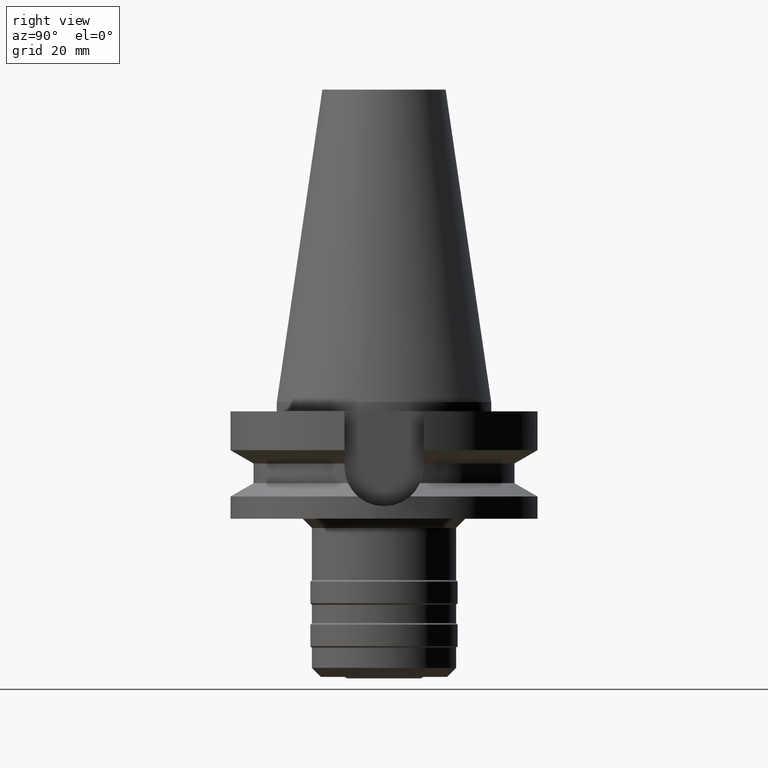
[diagram: clean part render]
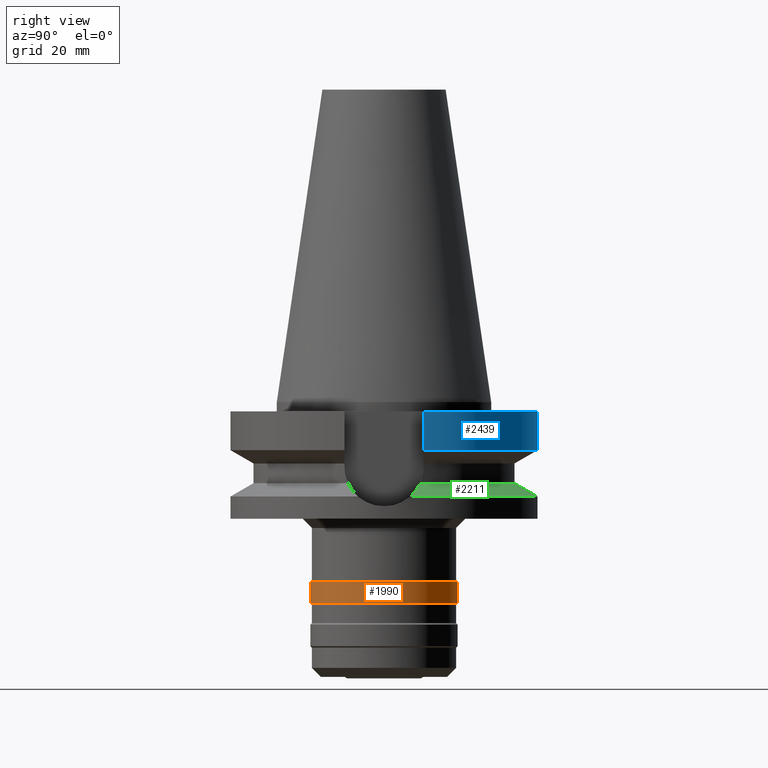
[diagram: same view with three faces highlighted in distinct colors, each labeled with its STEP entity id]
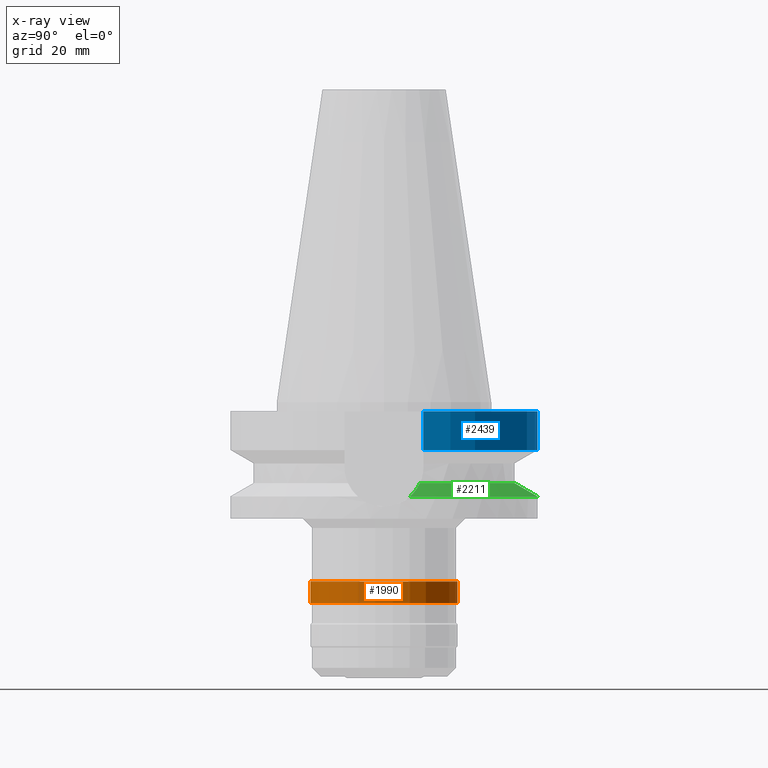
[diagram: x-ray of the same camera — body ghosted, the three highlighted faces saturated]
A machine part, right view with three faces highlighted in distinct colors.
The next image is the same camera in x-ray (body ghosted, the three faces saturated) — at least one of them is partly hidden behind the body in this view.
Their STEP definitions:

[orange] entity #1990 — the highlighted cylindrical surface (partial cylindrical patch) has radius 24 mm, axis along (0, 0, -1).
#503=CARTESIAN_POINT('',(0.E0,0.E0,-6.55E1));
#504=DIRECTION('',(0.E0,0.E0,1.E0));
#505=DIRECTION('',(0.E0,-1.E0,0.E0));
#506=AXIS2_PLACEMENT_3D('',#503,#504,#505);
#534=DIRECTION('',(0.E0,0.E0,-1.E0));
#535=VECTOR('',#534,7.E0);
#536=CARTESIAN_POINT('',(0.E0,-2.4E1,-5.85E1));
#537=LINE('',#536,#535);
#541=DIRECTION('',(0.E0,0.E0,-1.E0));
#542=VECTOR('',#541,7.E0);
#543=CARTESIAN_POINT('',(0.E0,2.4E1,-5.85E1));
#544=LINE('',#543,#542);
#555=CARTESIAN_POINT('',(0.E0,0.E0,-5.85E1));
#556=DIRECTION('',(0.E0,0.E0,-1.E0));
#557=DIRECTION('',(0.E0,1.E0,0.E0));
#558=AXIS2_PLACEMENT_3D('',#555,#556,#557);
#1360=CARTESIAN_POINT('',(0.E0,2.4E1,-6.55E1));
#1361=VERTEX_POINT('',#1360);
#1362=CARTESIAN_POINT('',(0.E0,-2.4E1,-6.55E1));
#1363=VERTEX_POINT('',#1362);
#1364=CARTESIAN_POINT('',(0.E0,2.4E1,-5.85E1));
#1365=VERTEX_POINT('',#1364);
#1366=CARTESIAN_POINT('',(0.E0,-2.4E1,-5.85E1));
#1367=VERTEX_POINT('',#1366);
#1978=CARTESIAN_POINT('',(0.E0,2.588780868718E-14,1.1139E2));
#1979=DIRECTION('',(0.E0,0.E0,-1.E0));
#1980=DIRECTION('',(0.E0,-1.E0,0.E0));
#1981=AXIS2_PLACEMENT_3D('',#1978,#1979,#1980);
#1982=CYLINDRICAL_SURFACE('',#1981,2.4E1);
#1983=ORIENTED_EDGE('',*,*,#1968,.T.);
#1984=ORIENTED_EDGE('',*,*,#1945,.F.);
#1985=ORIENTED_EDGE('',*,*,#1972,.F.);
#1987=ORIENTED_EDGE('',*,*,#1986,.F.);
#1988=EDGE_LOOP('',(#1983,#1984,#1985,#1987));
#1989=FACE_OUTER_BOUND('',#1988,.F.);
#507=CIRCLE('',#506,2.4E1);
#559=CIRCLE('',#558,2.4E1);
#1945=EDGE_CURVE('',#1363,#1361,#507,.T.);
#1968=EDGE_CURVE('',#1365,#1361,#544,.T.);
#1972=EDGE_CURVE('',#1367,#1363,#537,.T.);
#1986=EDGE_CURVE('',#1365,#1367,#559,.T.);
#1990=ADVANCED_FACE('',(#1989),#1982,.T.);

[blue] entity #2439 — the highlighted cylindrical surface (partial cylindrical patch) has radius 50 mm, axis along (0, 0, -1).
#895=CARTESIAN_POINT('',(4.832056913097E1,1.285000384665E1,-1.566265777773E1));
#949=CARTESIAN_POINT('',(0.E0,2.588780868718E-14,-3.E0));
#950=DIRECTION('',(0.E0,0.E0,-1.E0));
#951=DIRECTION('',(-9.664114030784E-1,2.57E-1,0.E0));
#952=AXIS2_PLACEMENT_3D('',#949,#950,#951);
#957=CARTESIAN_POINT('',(0.E0,2.588780868718E-14,-3.E0));
#958=DIRECTION('',(0.E0,0.E0,-1.E0));
#959=DIRECTION('',(0.E0,1.E0,0.E0));
#960=AXIS2_PLACEMENT_3D('',#957,#958,#959);
#1153=CARTESIAN_POINT('',(-4.832056913214E1,1.285000384224E1,
-1.566265781725E1));
#1174=CARTESIAN_POINT('',(0.E0,1.006319759054E-14,-1.566269223573E1));
#1175=DIRECTION('',(0.E0,0.E0,1.E0));
#1176=DIRECTION('',(9.664114030784E-1,2.57E-1,0.E0));
#1177=AXIS2_PLACEMENT_3D('',#1174,#1175,#1176);
#1182=CARTESIAN_POINT('',(0.E0,1.006319759054E-14,-1.566269223573E1));
#1183=DIRECTION('',(0.E0,0.E0,1.E0));
#1184=DIRECTION('',(0.E0,1.E0,0.E0));
#1185=AXIS2_PLACEMENT_3D('',#1182,#1183,#1184);
#1190=DIRECTION('',(8.069216545385E-8,3.034310443040E-7,-1.E0));
#1191=VECTOR('',#1190,1.266265781725E1);
#1192=CARTESIAN_POINT('',(-4.832057015392E1,1.285E1,-3.E0));
#1193=LINE('',#1192,#1191);
#1197=DIRECTION('',(8.078480417336E-8,-3.037793970772E-7,1.E0));
#1198=VECTOR('',#1197,1.266265777773E1);
#1199=CARTESIAN_POINT('',(4.832056913097E1,1.285000384665E1,-1.566265777773E1));
#1200=LINE('',#1199,#1198);
#1439=CARTESIAN_POINT('',(-4.832057015392E1,1.285E1,-3.E0));
#1440=VERTEX_POINT('',#1439);
#1441=CARTESIAN_POINT('',(-1.065814103640E-14,5.E1,-3.E0));
#1442=CARTESIAN_POINT('',(4.832057015392E1,1.285E1,-3.E0));
#1443=VERTEX_POINT('',#1441);
#1444=VERTEX_POINT('',#1442);
#1465=VERTEX_POINT('',#1153);
#1470=VERTEX_POINT('',#895);
#1471=CARTESIAN_POINT('',(-2.832769448824E-14,5.E1,-1.566269223573E1));
#1472=VERTEX_POINT('',#1471);
#2426=CARTESIAN_POINT('',(0.E0,2.588780868718E-14,1.1139E2));
#2427=DIRECTION('',(0.E0,0.E0,-1.E0));
#2428=DIRECTION('',(0.E0,-1.E0,0.E0));
#2429=AXIS2_PLACEMENT_3D('',#2426,#2427,#2428);
#2430=CYLINDRICAL_SURFACE('',#2429,5.E1);
#2431=ORIENTED_EDGE('',*,*,#2402,.T.);
#2432=ORIENTED_EDGE('',*,*,#2421,.F.);
#2433=ORIENTED_EDGE('',*,*,#2419,.F.);
#2434=ORIENTED_EDGE('',*,*,#2243,.T.);
#2435=ORIENTED_EDGE('',*,*,#2276,.F.);
#2436=ORIENTED_EDGE('',*,*,#2274,.F.);
#2437=EDGE_LOOP('',(#2431,#2432,#2433,#2434,#2435,#2436));
#2438=FACE_OUTER_BOUND('',#2437,.F.);
#953=CIRCLE('',#952,5.E1);
#961=CIRCLE('',#960,5.E1);
#1178=CIRCLE('',#1177,5.E1);
#1186=CIRCLE('',#1185,5.E1);
#2243=EDGE_CURVE('',#1470,#1444,#1200,.T.);
#2274=EDGE_CURVE('',#1440,#1443,#953,.T.);
#2276=EDGE_CURVE('',#1443,#1444,#961,.T.);
#2402=EDGE_CURVE('',#1440,#1465,#1193,.T.);
#2419=EDGE_CURVE('',#1470,#1472,#1178,.T.);
#2421=EDGE_CURVE('',#1472,#1465,#1186,.T.);
#2439=ADVANCED_FACE('',(#2438),#2430,.T.);

[green] entity #2211 — the highlighted conical surface has half-angle 60 deg.
#687=CARTESIAN_POINT('',(4.926250064874E1,8.556052234130E0,-3.073730776427E1));
#801=CARTESIAN_POINT('',(-4.085052569294E1,1.172538061688E1,-2.640718074535E1));
#802=CARTESIAN_POINT('',(-4.174789391196E1,1.151698619653E1,-2.687197433251E1));
#803=CARTESIAN_POINT('',(-4.344195317559E1,1.105807447745E1,-2.774721081984E1));
#804=CARTESIAN_POINT('',(-4.566776687759E1,1.028405468462E1,-2.889319373295E1));
#805=CARTESIAN_POINT('',(-4.761168051884E1,9.447098103342E0,-2.989144778506E1));
#806=CARTESIAN_POINT('',(-4.874078689241E1,8.855445994061E0,-3.047011819327E1));
#807=CARTESIAN_POINT('',(-4.926250064874E1,8.556052234130E0,-3.073730776427E1));
#812=CARTESIAN_POINT('',(0.E0,0.E0,-3.073730776427E1));
#813=DIRECTION('',(0.E0,0.E0,-1.E0));
#814=DIRECTION('',(-9.852500129747E-1,1.711210446826E-1,0.E0));
#815=AXIS2_PLACEMENT_3D('',#812,#813,#814);
#820=CARTESIAN_POINT('',(0.E0,0.E0,-3.073730776427E1));
#821=DIRECTION('',(0.E0,0.E0,-1.E0));
#822=DIRECTION('',(0.E0,1.E0,0.E0));
#823=AXIS2_PLACEMENT_3D('',#820,#821,#822);
#828=CARTESIAN_POINT('',(4.926250064874E1,8.556052234130E0,-3.073730776427E1));
#829=CARTESIAN_POINT('',(4.845427506346E1,9.019865376714E0,-3.032338452613E1));
#830=CARTESIAN_POINT('',(4.674401422369E1,9.867730136297E0,-2.944650359384E1));
#831=CARTESIAN_POINT('',(4.393176132288E1,1.092038177539E1,-2.800008173283E1));
#832=CARTESIAN_POINT('',(4.190161490360E1,1.148128781066E1,-2.695159441446E1));
#833=CARTESIAN_POINT('',(4.085052569294E1,1.172538061688E1,-2.640718074535E1));
#838=CARTESIAN_POINT('',(0.E0,0.E0,-2.640718074535E1));
#839=DIRECTION('',(0.E0,0.E0,1.E0));
#840=DIRECTION('',(9.611888398338E-1,2.758913086325E-1,0.E0));
#841=AXIS2_PLACEMENT_3D('',#838,#839,#840);
#846=CARTESIAN_POINT('',(0.E0,0.E0,-2.640718074535E1));
#847=DIRECTION('',(0.E0,0.E0,1.E0));
#848=DIRECTION('',(0.E0,1.E0,0.E0));
#849=AXIS2_PLACEMENT_3D('',#846,#847,#848);
#864=CARTESIAN_POINT('',(4.085052569294E1,1.172538061688E1,-2.640718074535E1));
#1385=VERTEX_POINT('',#687);
#1387=CARTESIAN_POINT('',(0.E0,5.E1,-3.073730776427E1));
#1388=VERTEX_POINT('',#1387);
#1401=VERTEX_POINT('',#864);
#1406=VERTEX_POINT('',#801);
#1407=VERTEX_POINT('',#807);
#1408=CARTESIAN_POINT('',(0.E0,4.25E1,-2.640718074535E1));
#1409=VERTEX_POINT('',#1408);
#2196=CARTESIAN_POINT('',(0.E0,0.E0,-2.857224425481E1));
#2197=DIRECTION('',(0.E0,0.E0,-1.E0));
#2198=DIRECTION('',(0.E0,-1.E0,0.E0));
#2199=AXIS2_PLACEMENT_3D('',#2196,#2197,#2198);
#2200=CONICAL_SURFACE('',#2199,4.625E1,6.E1);
#2201=ORIENTED_EDGE('',*,*,#2164,.T.);
#2202=ORIENTED_EDGE('',*,*,#2191,.T.);
#2203=ORIENTED_EDGE('',*,*,#2100,.T.);
#2204=ORIENTED_EDGE('',*,*,#2133,.T.);
#2206=ORIENTED_EDGE('',*,*,#2205,.T.);
#2208=ORIENTED_EDGE('',*,*,#2207,.T.);
#2209=EDGE_LOOP('',(#2201,#2202,#2203,#2204,#2206,#2208));
#2210=FACE_OUTER_BOUND('',#2209,.F.);
#808=B_SPLINE_CURVE_WITH_KNOTS('',3,(#801,#802,#803,#804,#805,#806,#807),
.UNSPECIFIED.,.F.,.F.,(4,1,1,1,4),(0.E0,2.5E-1,5.E-1,7.5E-1,1.E0),
.UNSPECIFIED.);
#816=CIRCLE('',#815,5.E1);
#824=CIRCLE('',#823,5.E1);
#834=B_SPLINE_CURVE_WITH_KNOTS('',3,(#828,#829,#830,#831,#832,#833),
.UNSPECIFIED.,.F.,.F.,(4,1,1,4),(0.E0,3.333333333333E-1,6.666666666667E-1,1.E0),
.UNSPECIFIED.);
#842=CIRCLE('',#841,4.25E1);
#850=CIRCLE('',#849,4.25E1);
#2100=EDGE_CURVE('',#1388,#1385,#824,.T.);
#2133=EDGE_CURVE('',#1385,#1401,#834,.T.);
#2164=EDGE_CURVE('',#1406,#1407,#808,.T.);
#2191=EDGE_CURVE('',#1407,#1388,#816,.T.);
#2205=EDGE_CURVE('',#1401,#1409,#842,.T.);
#2207=EDGE_CURVE('',#1409,#1406,#850,.T.);
#2211=ADVANCED_FACE('',(#2210),#2200,.T.);